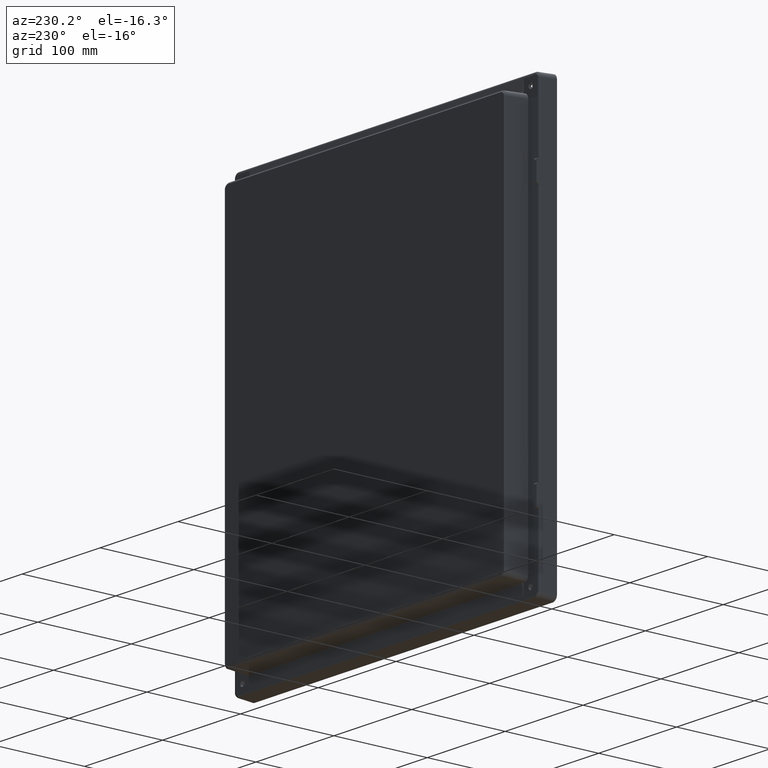
[diagram: clean part render]
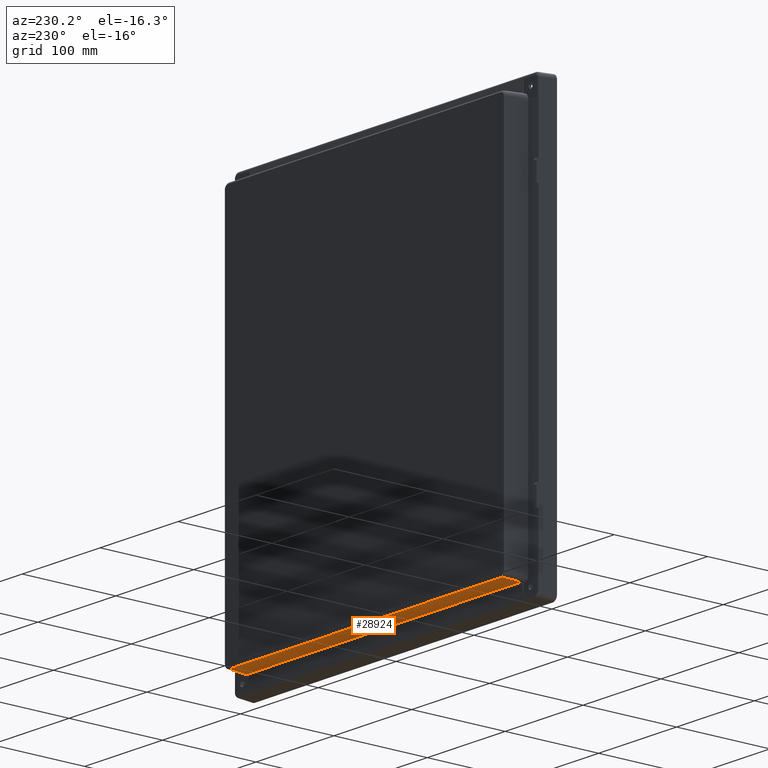
[diagram: same view with one face highlighted and labeled with its STEP entity id]
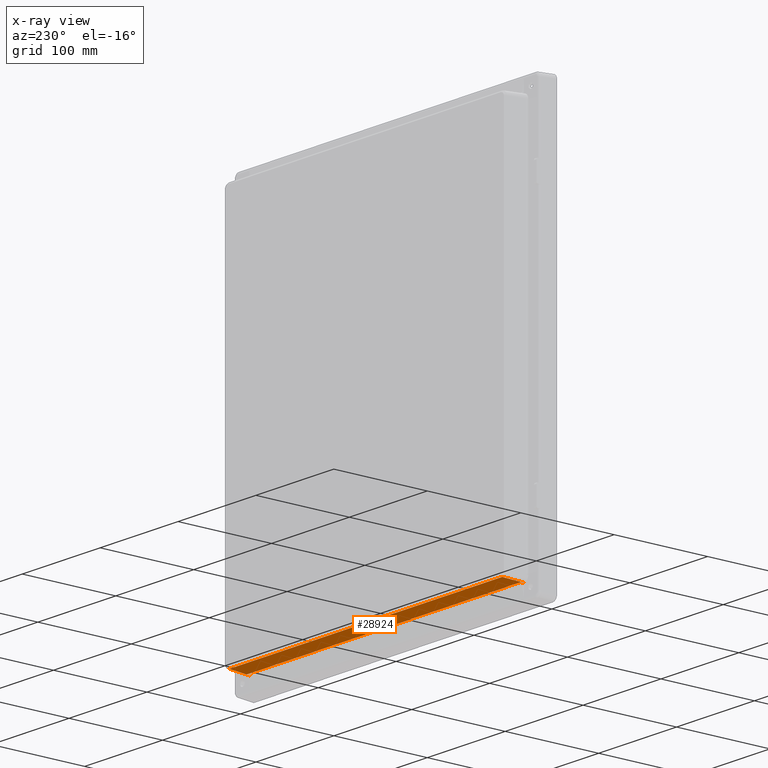
[diagram: x-ray of the same camera — body ghosted, the highlighted face saturated]
A machine part, auxiliary view. The second image highlights one B-rep face of the part: STEP entity #28924.
The next image is the same camera in x-ray: the body ghosted, the highlighted face saturated — about 0% of this face is hidden behind the body in this view.
In plain terms, the highlighted planar face has unit normal (0, 0.0523, -0.9986).
Its self-contained STEP definition (entity closure, byte-faithful):
#223 = CARTESIAN_POINT ( 'NONE',  ( -177.7360343525361700, -23.44111524076237500, -211.2284967936862500 ) ) ;
#719 = EDGE_CURVE ( 'NONE', #24952, #8882, #5190, .T. ) ;
#1988 = DIRECTION ( 'NONE',  ( -1.000000000000000000, 0.0000000000000000000, 0.0000000000000000000 ) ) ;
#2219 = ORIENTED_EDGE ( 'NONE', *, *, #719, .T. ) ;
#2292 = VERTEX_POINT ( 'NONE', #16697 ) ;
#2606 = DIRECTION ( 'NONE',  ( 0.05226442768871490000, 0.9972646886342371200, 0.05226442768871490000 ) ) ;
#2726 = LINE ( 'NONE', #29781, #7528 ) ;
#3700 = CARTESIAN_POINT ( 'NONE',  ( 175.8133864173981900, 13.24519281198312500, -209.3058488585482500 ) ) ;
#3820 = DIRECTION ( 'NONE',  ( -1.000000000000000000, 0.0000000000000000000, 0.0000000000000000000 ) ) ;
#4037 = CARTESIAN_POINT ( 'NONE',  ( 175.2256730632264000, 32.50205569786808700, -208.2966394387409800 ) ) ;
#4485 = DIRECTION ( 'NONE',  ( 0.0000000000000000000, 0.05233595624294395300, -0.9986295347545739400 ) ) ;
#4533 = VERTEX_POINT ( 'NONE', #12333 ) ;
#4623 = EDGE_CURVE ( 'NONE', #28326, #10254, #16365, .T. ) ;
#4685 = CARTESIAN_POINT ( 'NONE',  ( -182.5000000000000600, 0.0000000000000000000, -210.0000000000000000 ) ) ;
#5190 = LINE ( 'NONE', #19405, #29658 ) ;
#5973 = ORIENTED_EDGE ( 'NONE', *, *, #5985, .T. ) ;
#5985 = EDGE_CURVE ( 'NONE', #4533, #12919, #28845, .T. ) ;
#6039 = DIRECTION ( 'NONE',  ( -1.000000000000000000, 0.0000000000000000000, 0.0000000000000000000 ) ) ;
#6695 = EDGE_CURVE ( 'NONE', #8882, #10254, #10323, .T. ) ;
#6865 = DIRECTION ( 'NONE',  ( 0.0000000000000000000, 0.9986295347545739400, 0.05233595624294395300 ) ) ;
#7528 = VECTOR ( 'NONE', #3820, 1000.000000000000000 ) ;
#7679 = VECTOR ( 'NONE', #6039, 1000.000000000000000 ) ;
#7683 = DIRECTION ( 'NONE',  ( -0.05226442768871490000, 0.9972646886342371200, 0.05226442768871490000 ) ) ;
#8478 = VECTOR ( 'NONE', #1988, 1000.000000000000000 ) ;
#8763 = ORIENTED_EDGE ( 'NONE', *, *, #19171, .T. ) ;
#8768 = DIRECTION ( 'NONE',  ( 1.000000000000000000, -0.0000000000000000000, -0.0000000000000000000 ) ) ;
#8882 = VERTEX_POINT ( 'NONE', #3700 ) ;
#10254 = VERTEX_POINT ( 'NONE', #27436 ) ;
#10323 = LINE ( 'NONE', #23042, #8478 ) ;
#12333 = CARTESIAN_POINT ( 'NONE',  ( -176.4696737350492400, 10.26305314132462100, -209.4621361761993200 ) ) ;
#12919 = VERTEX_POINT ( 'NONE', #26697 ) ;
#12970 = VERTEX_POINT ( 'NONE', #29148 ) ;
#13639 = EDGE_CURVE ( 'NONE', #12919, #12970, #14387, .T. ) ;
#13914 = CARTESIAN_POINT ( 'NONE',  ( -177.0225406066862200, -0.2862752064970351400, -210.0150030478363000 ) ) ;
#14387 = LINE ( 'NONE', #4037, #21418 ) ;
#14608 = CARTESIAN_POINT ( 'NONE',  ( 175.9696737350492700, 10.26305314132462100, -209.4621361761993200 ) ) ;
#16365 = LINE ( 'NONE', #223, #22283 ) ;
#16697 = CARTESIAN_POINT ( 'NONE',  ( 176.4696737350492700, 10.26305314132462100, -209.4621361761993200 ) ) ;
#17392 = CARTESIAN_POINT ( 'NONE',  ( 176.0255174100917100, 18.73806068855865800, -209.0179798512417600 ) ) ;
#17897 = ORIENTED_EDGE ( 'NONE', *, *, #27695, .T. ) ;
#19016 = LINE ( 'NONE', #17392, #25687 ) ;
#19171 = EDGE_CURVE ( 'NONE', #28326, #4533, #27007, .T. ) ;
#19405 = CARTESIAN_POINT ( 'NONE',  ( 177.7360343525361900, -23.44111524076241400, -211.2284967936862500 ) ) ;
#19557 = DIRECTION ( 'NONE',  ( 0.05226442768871403200, -0.9972646886342372300, -0.05226442768871402500 ) ) ;
#20943 = CARTESIAN_POINT ( 'NONE',  ( -175.9696737350492400, 10.26305314132462200, -209.4621361761993200 ) ) ;
#21047 = PLANE ( 'NONE',  #28804 ) ;
#21418 = VECTOR ( 'NONE', #8768, 1000.000000000000000 ) ;
#22283 = VECTOR ( 'NONE', #2606, 1000.000000000000300 ) ;
#22594 = VECTOR ( 'NONE', #30454, 1000.000000000000200 ) ;
#23042 = CARTESIAN_POINT ( 'NONE',  ( -175.9035775073936600, 13.24519281198312500, -209.3058488585482500 ) ) ;
#23097 = EDGE_CURVE ( 'NONE', #2292, #24952, #2726, .T. ) ;
#24356 = ORIENTED_EDGE ( 'NONE', *, *, #6695, .T. ) ;
#24917 = ORIENTED_EDGE ( 'NONE', *, *, #13639, .T. ) ;
#24952 = VERTEX_POINT ( 'NONE', #14608 ) ;
#25024 = CARTESIAN_POINT ( 'NONE',  ( -178.2360343525361700, 10.26305314132462100, -209.4621361761993200 ) ) ;
#25687 = VECTOR ( 'NONE', #19557, 1000.000000000000200 ) ;
#25888 = ORIENTED_EDGE ( 'NONE', *, *, #23097, .T. ) ;
#25987 = FACE_OUTER_BOUND ( 'NONE', #26321, .T. ) ;
#26321 = EDGE_LOOP ( 'NONE', ( #24356, #27886, #8763, #5973, #24917, #17897, #25888, #2219 ) ) ;
#26697 = CARTESIAN_POINT ( 'NONE',  ( -175.3041769975909000, 32.50205569786811600, -208.2966394387409800 ) ) ;
#27007 = LINE ( 'NONE', #25024, #7679 ) ;
#27436 = CARTESIAN_POINT ( 'NONE',  ( -175.8133864173981900, 13.24519281198312200, -209.3058488585482700 ) ) ;
#27695 = EDGE_CURVE ( 'NONE', #12970, #2292, #19016, .T. ) ;
#27886 = ORIENTED_EDGE ( 'NONE', *, *, #4623, .F. ) ;
#28326 = VERTEX_POINT ( 'NONE', #20943 ) ;
#28804 = AXIS2_PLACEMENT_3D ( 'NONE', #4685, #4485, #6865 ) ;
#28845 = LINE ( 'NONE', #13914, #22594 ) ;
#28924 = ADVANCED_FACE ( 'NONE', ( #25987 ), #21047, .T. ) ;
#29148 = CARTESIAN_POINT ( 'NONE',  ( 175.3041769975909300, 32.50205569786811600, -208.2966394387409800 ) ) ;
#29658 = VECTOR ( 'NONE', #7683, 1000.000000000000200 ) ;
#29781 = CARTESIAN_POINT ( 'NONE',  ( 178.2360343525361900, 10.26305314132462100, -209.4621361761993200 ) ) ;
#30454 = DIRECTION ( 'NONE',  ( 0.05226442768871404600, 0.9972646886342372300, 0.05226442768871402500 ) ) ;